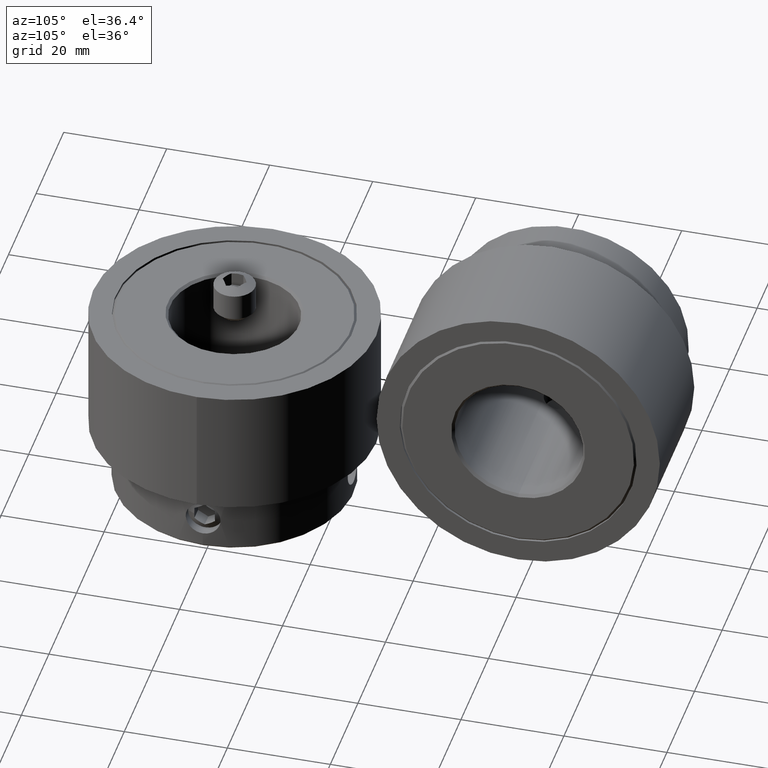
[diagram: clean part render]
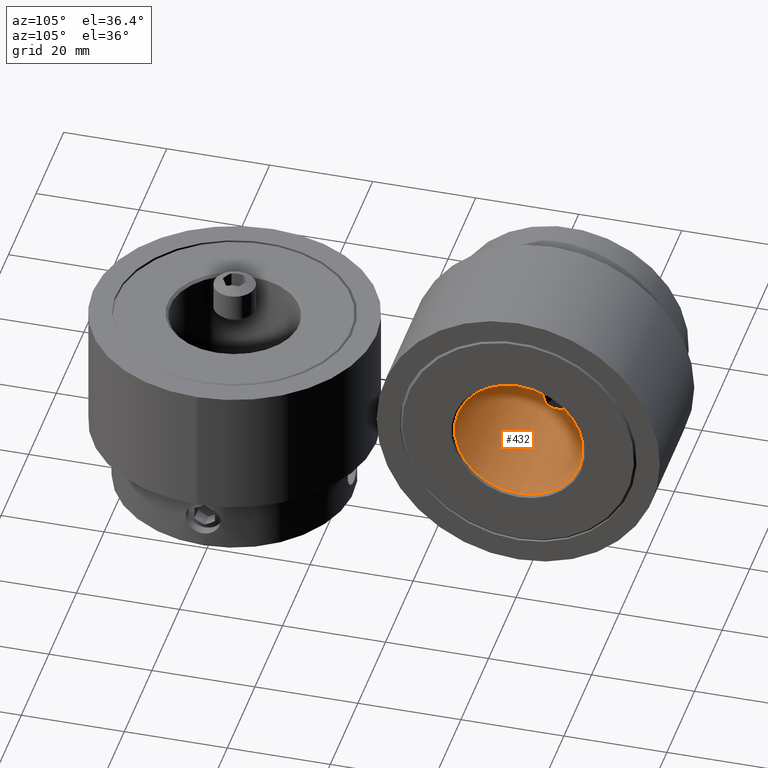
[diagram: same view with one face highlighted and labeled with its STEP entity id]
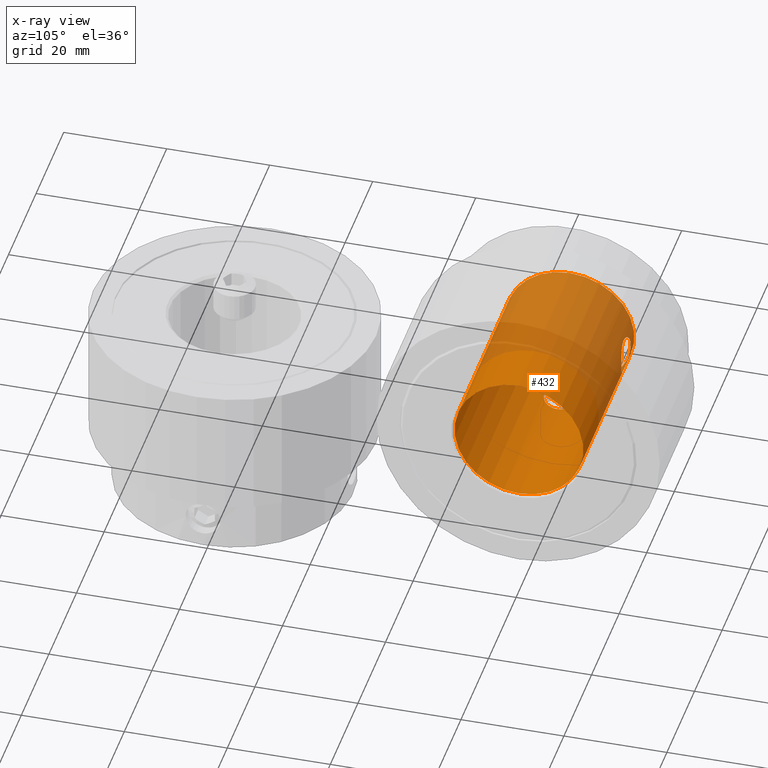
[diagram: x-ray of the same camera — body ghosted, the highlighted face saturated]
A machine part, auxiliary view. The second image highlights one B-rep face of the part: STEP entity #432.
The next image is the same camera in x-ray: the body ghosted, the highlighted face saturated — about 42% of this face is hidden behind the body in this view.
In plain terms, the highlighted cylindrical surface (bore or boss wall) has radius 12.5 mm, axis along (-1, -0, -0).
Its self-contained STEP definition (entity closure, byte-faithful):
#432 = ADVANCED_FACE( '', ( #549, #550, #551, #552 ), #553, .F. );
#549 = FACE_BOUND( '', #731, .T. );
#550 = FACE_OUTER_BOUND( '', #732, .T. );
#551 = FACE_OUTER_BOUND( '', #733, .T. );
#552 = FACE_BOUND( '', #734, .T. );
#553 = CYLINDRICAL_SURFACE( '', #735, 12.5000000000000 );
#731 = EDGE_LOOP( '', ( #949 ) );
#732 = EDGE_LOOP( '', ( #950 ) );
#733 = EDGE_LOOP( '', ( #951 ) );
#734 = EDGE_LOOP( '', ( #952 ) );
#735 = AXIS2_PLACEMENT_3D( '', #953, #954, #955 );
#949 = ORIENTED_EDGE( '', *, *, #1272, .F. );
#950 = ORIENTED_EDGE( '', *, *, #1273, .T. );
#951 = ORIENTED_EDGE( '', *, *, #1274, .T. );
#952 = ORIENTED_EDGE( '', *, *, #1275, .F. );
#953 = CARTESIAN_POINT( '', ( -69.0164143397842, 58.0000000000000, -11.0000000000000 ) );
#954 = DIRECTION( '', ( -1.00000000000000, -0.000000000000000, -6.12323399573677E-017 ) );
#955 = DIRECTION( '', ( -6.12323399573677E-017, 0.000000000000000, 1.00000000000000 ) );
#1272 = EDGE_CURVE( '', #1397, #1397, #1398, .T. );
#1273 = EDGE_CURVE( '', #1399, #1399, #1400, .F. );
#1274 = EDGE_CURVE( '', #1401, #1401, #1402, .T. );
#1275 = EDGE_CURVE( '', #1403, #1403, #1404, .T. );
#1397 = VERTEX_POINT( '', #1963 );
#1398 = B_SPLINE_CURVE_WITH_KNOTS( '', 3, ( #1964, #1965, #1966, #1967, #1968, #1969, #1970, #1971, #1972, #1973, #1974, #1975, #1976, #1977, #1978, #1979, #1980, #1981, #1982, #1983, #1984, #1985, #1986, #1987, #1988, #1989, #1990, #1991, #1992, #1993, #1994, #1995, #1996, #1997, #1998, #1999, #2000, #2001, #2002, #2003, #2004, #2005, #2006, #2007, #2008, #2009, #2010, #2011, #2012, #2013, #2014, #2015, #2016, #2017, #2018, #2019, #2020, #2021, #2022, #2023, #2024, #2025, #2026, #2027 ), .UNSPECIFIED., .T., .F., ( 2, 2, 2, 2, 2, 2, 2, 2, 2, 2, 2, 2, 2, 2, 2, 2, 2, 2, 2, 2, 2, 2, 2, 2, 2, 2, 2, 2, 2, 2, 2, 2, 2, 2 ), ( -0.000662476388210753, 0.000000000000000, 0.000662476388210761, 0.00132495277642152, 0.00198742916463228, 0.00264990555284304, 0.00331238194105380, 0.00397485832926456, 0.00463733471747533, 0.00529981110568609, 0.00596228749389685, 0.00662476388210761, 0.00794971665852913, 0.00861219304673989, 0.00927466943495064, 0.00993714582316139, 0.0105996222113722, 0.0112620985995829, 0.0119245749877937, 0.0125870513760044, 0.0132495277642152, 0.0139120041524259, 0.0145744805406367, 0.0152369569288474, 0.0158994333170582, 0.0165619097052690, 0.0172243860934797, 0.0178868624816905, 0.0185493388699012, 0.0192118152581120, 0.0198742916463227, 0.0205367680345335, 0.0211992444227442, 0.0218617208109550 ), .UNSPECIFIED. );
#1399 = VERTEX_POINT( '', #2028 );
#1400 = CIRCLE( '', #2029, 12.5000000000000 );
#1401 = VERTEX_POINT( '', #2030 );
#1402 = CIRCLE( '', #2031, 12.5000000000000 );
#1403 = VERTEX_POINT( '', #2032 );
#1404 = B_SPLINE_CURVE_WITH_KNOTS( '', 3, ( #2033, #2034, #2035, #2036, #2037, #2038, #2039, #2040, #2041, #2042, #2043, #2044, #2045, #2046, #2047, #2048, #2049, #2050, #2051, #2052, #2053, #2054, #2055, #2056, #2057, #2058, #2059, #2060, #2061, #2062, #2063, #2064, #2065, #2066, #2067, #2068, #2069, #2070, #2071, #2072, #2073, #2074, #2075, #2076, #2077, #2078, #2079, #2080, #2081, #2082, #2083, #2084, #2085, #2086, #2087, #2088, #2089, #2090, #2091, #2092, #2093, #2094, #2095, #2096 ), .UNSPECIFIED., .T., .F., ( 2, 2, 2, 2, 2, 2, 2, 2, 2, 2, 2, 2, 2, 2, 2, 2, 2, 2, 2, 2, 2, 2, 2, 2, 2, 2, 2, 2, 2, 2, 2, 2, 2, 2 ), ( -0.000662476388210757, 0.000000000000000, 0.000662476388210759, 0.00132495277642152, 0.00198742916463228, 0.00264990555284304, 0.00331238194105379, 0.00397485832926455, 0.00463733471747531, 0.00529981110568607, 0.00596228749389683, 0.00662476388210759, 0.00794971665852910, 0.00861219304673986, 0.00927466943495062, 0.00993714582316137, 0.0105996222113721, 0.0112620985995829, 0.0119245749877936, 0.0125870513760044, 0.0132495277642152, 0.0139120041524259, 0.0145744805406367, 0.0152369569288474, 0.0158994333170582, 0.0165619097052689, 0.0172243860934797, 0.0178868624816905, 0.0185493388699012, 0.0192118152581120, 0.0198742916463227, 0.0205367680345335, 0.0211992444227442, 0.0218617208109550 ), .UNSPECIFIED. );
#1963 = CARTESIAN_POINT( '', ( -20.5000000000000, 61.3750000000000, -23.0357540270645 ) );
#1964 = CARTESIAN_POINT( '', ( -20.2759091219770, 61.3750000000000, -23.0357540270645 ) );
#1965 = CARTESIAN_POINT( '', ( -20.7240908780230, 61.3750000000000, -23.0357540270645 ) );
#1966 = CARTESIAN_POINT( '', ( -20.9442182262883, 61.3529050329944, -23.0420111777621 ) );
#1967 = CARTESIAN_POINT( '', ( -21.3769408529840, 61.2665389532674, -23.0657253670226 ) );
#1968 = CARTESIAN_POINT( '', ( -21.5918333535279, 61.2011520978025, -23.0834723797202 ) );
#1969 = CARTESIAN_POINT( '', ( -21.9999883069781, 61.0314204433022, -23.1271665940836 ) );
#1970 = CARTESIAN_POINT( '', ( -22.1934049691212, 60.9277107728534, -23.1529540483541 ) );
#1971 = CARTESIAN_POINT( '', ( -22.5594551443110, 60.6828632591874, -23.2093418005800 ) );
#1972 = CARTESIAN_POINT( '', ( -22.7319061407753, 60.5410993054828, -23.2400044845150 ) );
#1973 = CARTESIAN_POINT( '', ( -23.0415993857844, 60.2313366540565, -23.3002452088377 ) );
#1974 = CARTESIAN_POINT( '', ( -23.1809528239404, 60.0621129711860, -23.3301434922024 ) );
#1975 = CARTESIAN_POINT( '', ( -23.4277620509433, 59.6935251173762, -23.3861503753608 ) );
#1976 = CARTESIAN_POINT( '', ( -23.5319254108229, 59.4987716383828, -23.4114978111062 ) );
#1977 = CARTESIAN_POINT( '', ( -23.7006363967321, 59.0930758330180, -23.4537857522276 ) );
#1978 = CARTESIAN_POINT( '', ( -23.7660366497766, 58.8792517223296, -23.4709504788620 ) );
#1979 = CARTESIAN_POINT( '', ( -23.8531682082688, 58.4431049040113, -23.4940524843418 ) );
#1980 = CARTESIAN_POINT( '', ( -23.8748588145550, 58.2234204128186, -23.4999618799370 ) );
#1981 = CARTESIAN_POINT( '', ( -23.8751398246787, 57.7808656510013, -23.5000377526562 ) );
#1982 = CARTESIAN_POINT( '', ( -23.8529729872704, 57.5560432421668, -23.4940009602729 ) );
#1983 = CARTESIAN_POINT( '', ( -23.7663785478400, 57.1223345521206, -23.4710408931943 ) );
#1984 = CARTESIAN_POINT( '', ( -23.7023195635639, 56.9114082638847, -23.4542139146873 ) );
#1985 = CARTESIAN_POINT( '', ( -23.4471210688007, 56.2964353178345, -23.3902288992818 ) );
#1986 = CARTESIAN_POINT( '', ( -23.1985876721463, 55.9255828932160, -23.3307724388044 ) );
#1987 = CARTESIAN_POINT( '', ( -22.7302392490383, 55.4572854896109, -23.2396851158958 ) );
#1988 = CARTESIAN_POINT( '', ( -22.5609957511421, 55.3183812510552, -23.2096123366899 ) );
#1989 = CARTESIAN_POINT( '', ( -22.1963831201131, 55.0740699067282, -23.1533800078920 ) );
#1990 = CARTESIAN_POINT( '', ( -21.9987659507629, 54.9680212062636, -23.1270248805752 ) );
#1991 = CARTESIAN_POINT( '', ( -21.5917470809245, 54.7988622191280, -23.0834740355426 ) );
#1992 = CARTESIAN_POINT( '', ( -21.3813548825737, 54.7345681701558, -23.0660267812497 ) );
#1993 = CARTESIAN_POINT( '', ( -20.9463715803662, 54.6473020003827, -23.0420705630119 ) );
#1994 = CARTESIAN_POINT( '', ( -20.7223251277102, 54.6250956493765, -23.0357808485343 ) );
#1995 = CARTESIAN_POINT( '', ( -20.2805884225119, 54.6249049794217, -23.0357273819188 ) );
#1996 = CARTESIAN_POINT( '', ( -20.0599390073019, 54.6463516336141, -23.0418061005054 ) );
#1997 = CARTESIAN_POINT( '', ( -19.6214034270879, 54.7337056004205, -23.0657934850058 ) );
#1998 = CARTESIAN_POINT( '', ( -19.4103324500094, 54.7981712636720, -23.0832891561894 ) );
#1999 = CARTESIAN_POINT( '', ( -19.0036617299296, 54.9668408535322, -23.1267279049651 ) );
#2000 = CARTESIAN_POINT( '', ( -18.8061738682867, 55.0725393858971, -23.1530140252072 ) );
#2001 = CARTESIAN_POINT( '', ( -18.4402969130604, 55.3173341979944, -23.2093849041938 ) );
#2002 = CARTESIAN_POINT( '', ( -18.2710331346478, 55.4562265474494, -23.2394576379420 ) );
#2003 = CARTESIAN_POINT( '', ( -17.9595110610151, 55.7672902975007, -23.3000046354968 ) );
#2004 = CARTESIAN_POINT( '', ( -17.8179197775012, 55.9396336121816, -23.3304021337549 ) );
#2005 = CARTESIAN_POINT( '', ( -17.5739644830497, 56.3038336975649, -23.3857557826175 ) );
#2006 = CARTESIAN_POINT( '', ( -17.4697932760524, 56.4973175822033, -23.4110702202929 ) );
#2007 = CARTESIAN_POINT( '', ( -17.2986352164267, 56.9084548744512, -23.4539651396930 ) );
#2008 = CARTESIAN_POINT( '', ( -17.2342083839747, 57.1203313317319, -23.4708870491082 ) );
#2009 = CARTESIAN_POINT( '', ( -17.1475347569541, 57.5525755489438, -23.4938645789902 ) );
#2010 = CARTESIAN_POINT( '', ( -17.1250956084848, 57.7759976598657, -23.4999741857113 ) );
#2011 = CARTESIAN_POINT( '', ( -17.1249050103403, 58.2211119875283, -23.5000256472059 ) );
#2012 = CARTESIAN_POINT( '', ( -17.1466113754103, 58.4408844518646, -23.4941130211666 ) );
#2013 = CARTESIAN_POINT( '', ( -17.2328888879505, 58.8749739132946, -23.4712332965363 ) );
#2014 = CARTESIAN_POINT( '', ( -17.2984207878907, 59.0904401976215, -23.4540273664945 ) );
#2015 = CARTESIAN_POINT( '', ( -17.4673624338491, 59.4974240108832, -23.4116710720843 ) );
#2016 = CARTESIAN_POINT( '', ( -17.5709710662617, 59.6913078478587, -23.3864523477880 ) );
#2017 = CARTESIAN_POINT( '', ( -17.8172674121182, 60.0597763453399, -23.3305330544721 ) );
#2018 = CARTESIAN_POINT( '', ( -17.9575863053381, 60.2303995110693, -23.3004150714725 ) );
#2019 = CARTESIAN_POINT( '', ( -18.2670238005489, 60.5401509141127, -23.2402012337632 ) );
#2020 = CARTESIAN_POINT( '', ( -18.4385573753671, 60.6813906481352, -23.2096701914280 ) );
#2021 = CARTESIAN_POINT( '', ( -18.8055715459553, 60.9271682077878, -23.1530896596161 ) );
#2022 = CARTESIAN_POINT( '', ( -18.9989031799423, 61.0308070135635, -23.1273183262581 ) );
#2023 = CARTESIAN_POINT( '', ( -19.4053095012295, 61.2001149242730, -23.0837455042428 ) );
#2024 = CARTESIAN_POINT( '', ( -19.6205792810753, 61.2659400557380, -23.0658886309850 ) );
#2025 = CARTESIAN_POINT( '', ( -20.0552278319786, 61.3528976970825, -23.0420143637145 ) );
#2026 = CARTESIAN_POINT( '', ( -20.2759091219770, 61.3750000000000, -23.0357540270645 ) );
#2027 = CARTESIAN_POINT( '', ( -20.7240908780230, 61.3750000000000, -23.0357540270645 ) );
#2028 = CARTESIAN_POINT( '', ( -26.5000000000000, 58.0000000000000, -23.5000000000000 ) );
#2029 = AXIS2_PLACEMENT_3D( '', #2436, #2437, #2438 );
#2030 = CARTESIAN_POINT( '', ( 10.5000000000000, 58.0000000000000, -23.5000000000000 ) );
#2031 = AXIS2_PLACEMENT_3D( '', #2439, #2440, #2441 );
#2032 = CARTESIAN_POINT( '', ( -20.5000000000000, 70.0357540270645, -7.62500000000000 ) );
#2033 = CARTESIAN_POINT( '', ( -20.2759091219770, 70.0357540270646, -7.62500000000001 ) );
#2034 = CARTESIAN_POINT( '', ( -20.7240908780230, 70.0357540270645, -7.62500000000000 ) );
#2035 = CARTESIAN_POINT( '', ( -20.9442182262883, 70.0420111777621, -7.64709496700566 ) );
#2036 = CARTESIAN_POINT( '', ( -21.3769408529840, 70.0657253670225, -7.73346104673261 ) );
#2037 = CARTESIAN_POINT( '', ( -21.5918333535279, 70.0834723797202, -7.79884790219750 ) );
#2038 = CARTESIAN_POINT( '', ( -21.9999883069781, 70.1271665940836, -7.96857955669782 ) );
#2039 = CARTESIAN_POINT( '', ( -22.1934049691212, 70.1529540483541, -8.07228922714661 ) );
#2040 = CARTESIAN_POINT( '', ( -22.5594551443110, 70.2093418005800, -8.31713674081266 ) );
#2041 = CARTESIAN_POINT( '', ( -22.7319061407753, 70.2400044845150, -8.45890069451723 ) );
#2042 = CARTESIAN_POINT( '', ( -23.0415993857844, 70.3002452088378, -8.76866334594351 ) );
#2043 = CARTESIAN_POINT( '', ( -23.1809528239404, 70.3301434922024, -8.93788702881402 ) );
#2044 = CARTESIAN_POINT( '', ( -23.4277620509433, 70.3861503753608, -9.30647488262384 ) );
#2045 = CARTESIAN_POINT( '', ( -23.5319254108229, 70.4114978111062, -9.50122836161717 ) );
#2046 = CARTESIAN_POINT( '', ( -23.7006363967321, 70.4537857522276, -9.90692416698202 ) );
#2047 = CARTESIAN_POINT( '', ( -23.7660366497766, 70.4709504788620, -10.1207482776704 ) );
#2048 = CARTESIAN_POINT( '', ( -23.8531682082688, 70.4940524843418, -10.5568950959887 ) );
#2049 = CARTESIAN_POINT( '', ( -23.8748588145550, 70.4999618799370, -10.7765795871814 ) );
#2050 = CARTESIAN_POINT( '', ( -23.8751398246787, 70.5000377526562, -11.2191343489987 ) );
#2051 = CARTESIAN_POINT( '', ( -23.8529729872704, 70.4940009602729, -11.4439567578332 ) );
#2052 = CARTESIAN_POINT( '', ( -23.7663785478400, 70.4710408931943, -11.8776654478794 ) );
#2053 = CARTESIAN_POINT( '', ( -23.7023195635639, 70.4542139146874, -12.0885917361153 ) );
#2054 = CARTESIAN_POINT( '', ( -23.4471210688006, 70.3902288992818, -12.7035646821655 ) );
#2055 = CARTESIAN_POINT( '', ( -23.1985876721463, 70.3307724388044, -13.0744171067841 ) );
#2056 = CARTESIAN_POINT( '', ( -22.7302392490383, 70.2396851158958, -13.5427145103891 ) );
#2057 = CARTESIAN_POINT( '', ( -22.5609957511421, 70.2096123366899, -13.6816187489448 ) );
#2058 = CARTESIAN_POINT( '', ( -22.1963831201131, 70.1533800078920, -13.9259300932718 ) );
#2059 = CARTESIAN_POINT( '', ( -21.9987659507629, 70.1270248805752, -14.0319787937364 ) );
#2060 = CARTESIAN_POINT( '', ( -21.5917470809245, 70.0834740355426, -14.2011377808720 ) );
#2061 = CARTESIAN_POINT( '', ( -21.3813548825737, 70.0660267812497, -14.2654318298443 ) );
#2062 = CARTESIAN_POINT( '', ( -20.9463715803662, 70.0420705630119, -14.3526979996173 ) );
#2063 = CARTESIAN_POINT( '', ( -20.7223251277102, 70.0357808485344, -14.3749043506235 ) );
#2064 = CARTESIAN_POINT( '', ( -20.2805884225119, 70.0357273819188, -14.3750950205784 ) );
#2065 = CARTESIAN_POINT( '', ( -20.0599390073019, 70.0418061005055, -14.3536483663860 ) );
#2066 = CARTESIAN_POINT( '', ( -19.6214034270880, 70.0657934850058, -14.2662943995796 ) );
#2067 = CARTESIAN_POINT( '', ( -19.4103324500094, 70.0832891561894, -14.2018287363280 ) );
#2068 = CARTESIAN_POINT( '', ( -19.0036617299296, 70.1267279049651, -14.0331591464678 ) );
#2069 = CARTESIAN_POINT( '', ( -18.8061738682867, 70.1530140252072, -13.9274606141029 ) );
#2070 = CARTESIAN_POINT( '', ( -18.4402969130605, 70.2093849041938, -13.6826658020056 ) );
#2071 = CARTESIAN_POINT( '', ( -18.2710331346478, 70.2394576379420, -13.5437734525506 ) );
#2072 = CARTESIAN_POINT( '', ( -17.9595110610151, 70.3000046354968, -13.2327097024993 ) );
#2073 = CARTESIAN_POINT( '', ( -17.8179197775012, 70.3304021337549, -13.0603663878184 ) );
#2074 = CARTESIAN_POINT( '', ( -17.5739644830497, 70.3857557826175, -12.6961663024352 ) );
#2075 = CARTESIAN_POINT( '', ( -17.4697932760524, 70.4110702202929, -12.5026824177967 ) );
#2076 = CARTESIAN_POINT( '', ( -17.2986352164267, 70.4539651396929, -12.0915451255488 ) );
#2077 = CARTESIAN_POINT( '', ( -17.2342083839747, 70.4708870491083, -11.8796686682681 ) );
#2078 = CARTESIAN_POINT( '', ( -17.1475347569541, 70.4938645789902, -11.4474244510562 ) );
#2079 = CARTESIAN_POINT( '', ( -17.1250956084847, 70.4999741857113, -11.2240023401343 ) );
#2080 = CARTESIAN_POINT( '', ( -17.1249050103403, 70.5000256472059, -10.7788880124717 ) );
#2081 = CARTESIAN_POINT( '', ( -17.1466113754103, 70.4941130211666, -10.5591155481355 ) );
#2082 = CARTESIAN_POINT( '', ( -17.2328888879505, 70.4712332965363, -10.1250260867054 ) );
#2083 = CARTESIAN_POINT( '', ( -17.2984207878907, 70.4540273664945, -9.90955980237850 ) );
#2084 = CARTESIAN_POINT( '', ( -17.4673624338491, 70.4116710720843, -9.50257598911682 ) );
#2085 = CARTESIAN_POINT( '', ( -17.5709710662617, 70.3864523477880, -9.30869215214135 ) );
#2086 = CARTESIAN_POINT( '', ( -17.8172674121182, 70.3305330544721, -8.94022365466012 ) );
#2087 = CARTESIAN_POINT( '', ( -17.9575863053381, 70.3004150714725, -8.76960048893068 ) );
#2088 = CARTESIAN_POINT( '', ( -18.2670238005490, 70.2402012337632, -8.45984908588731 ) );
#2089 = CARTESIAN_POINT( '', ( -18.4385573753671, 70.2096701914280, -8.31860935186480 ) );
#2090 = CARTESIAN_POINT( '', ( -18.8055715459553, 70.1530896596161, -8.07283179221216 ) );
#2091 = CARTESIAN_POINT( '', ( -18.9989031799423, 70.1273183262582, -7.96919298643657 ) );
#2092 = CARTESIAN_POINT( '', ( -19.4053095012296, 70.0837455042428, -7.79988507572705 ) );
#2093 = CARTESIAN_POINT( '', ( -19.6205792810753, 70.0658886309850, -7.73405994426206 ) );
#2094 = CARTESIAN_POINT( '', ( -20.0552278319786, 70.0420143637144, -7.64710230291749 ) );
#2095 = CARTESIAN_POINT( '', ( -20.2759091219770, 70.0357540270646, -7.62500000000001 ) );
#2096 = CARTESIAN_POINT( '', ( -20.7240908780230, 70.0357540270645, -7.62500000000000 ) );
#2436 = CARTESIAN_POINT( '', ( -26.5000000000000, 58.0000000000000, -11.0000000000000 ) );
#2437 = DIRECTION( '', ( 1.00000000000000, 0.000000000000000, 6.12323399573677E-017 ) );
#2438 = DIRECTION( '', ( 6.12323399573677E-017, 0.000000000000000, -1.00000000000000 ) );
#2439 = CARTESIAN_POINT( '', ( 10.5000000000000, 58.0000000000000, -11.0000000000000 ) );
#2440 = DIRECTION( '', ( 1.00000000000000, 0.000000000000000, 6.12323399573677E-017 ) );
#2441 = DIRECTION( '', ( 6.12323399573677E-017, 0.000000000000000, -1.00000000000000 ) );